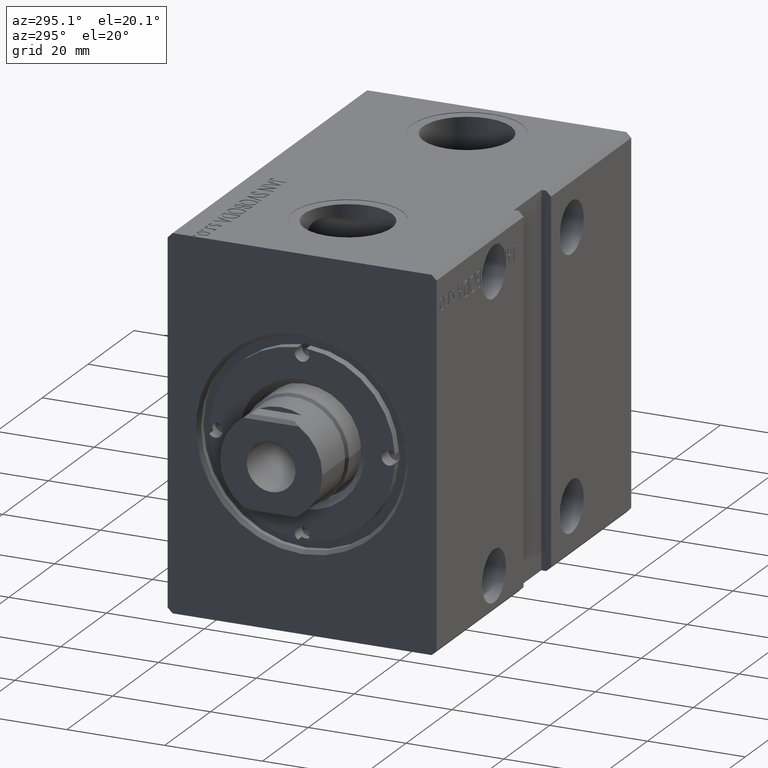
[diagram: clean part render]
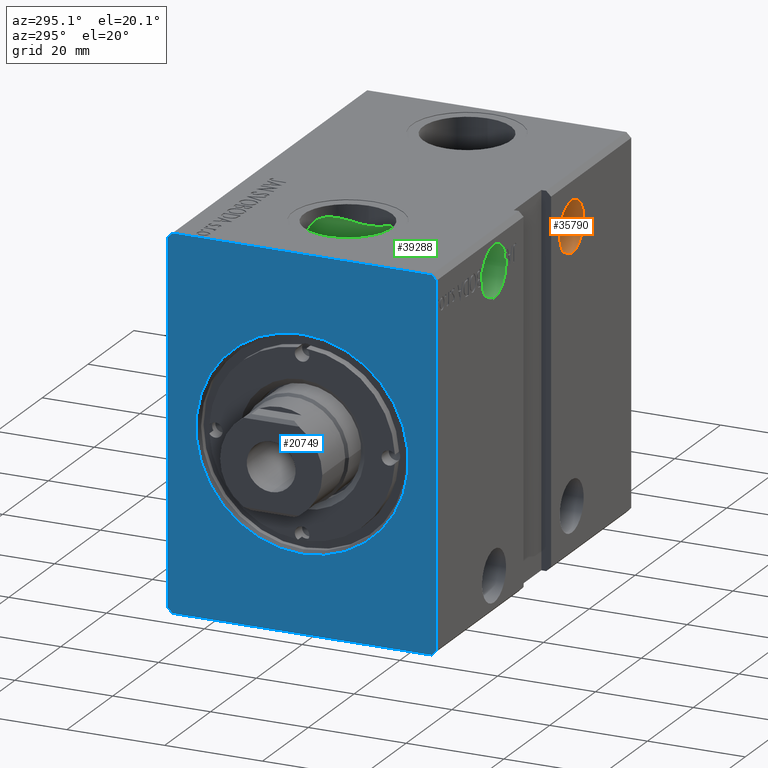
[diagram: same view with three faces highlighted in distinct colors, each labeled with its STEP entity id]
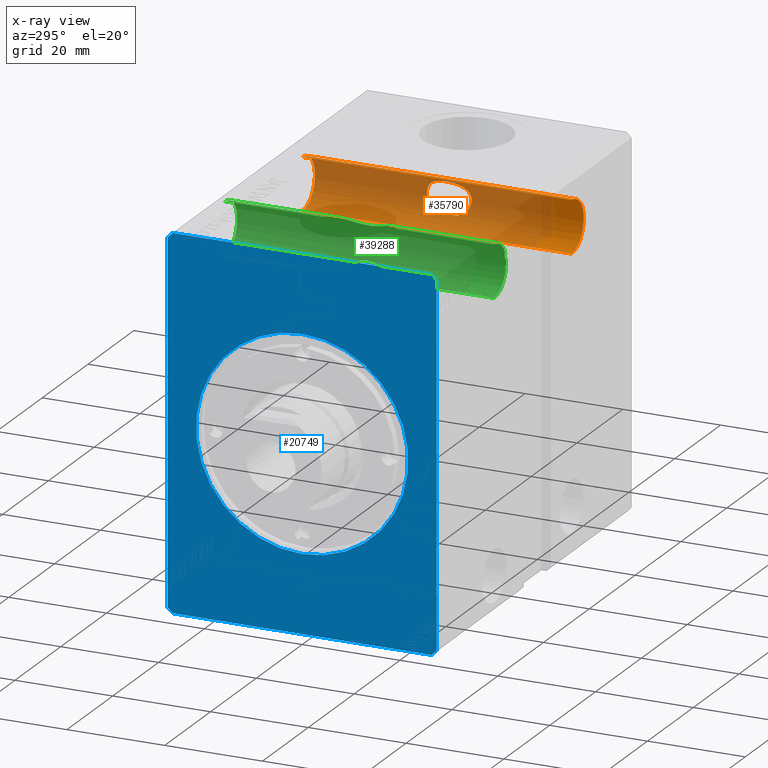
[diagram: x-ray of the same camera — body ghosted, the three highlighted faces saturated]
A machine part, auxiliary view with three faces highlighted in distinct colors.
The next image is the same camera in x-ray (body ghosted, the three faces saturated) — at least one of them is partly hidden behind the body in this view.
Their STEP definitions:

[orange] entity #35790 — the highlighted cylindrical surface (edge-blend (fillet) strip) has radius 5.25 mm, axis along (-0, -1, -0).
#85 = EDGE_CURVE ( 'NONE', #23502, #7759, #32953, .T. ) ;
#107 = CARTESIAN_POINT ( 'NONE',  ( 63.17735735727573854, -1.791229820699735908, 30.68101819592440549 ) ) ;
#509 = CARTESIAN_POINT ( 'NONE',  ( 63.00000000000001421, 1.351885911183617858E-15, 30.90036762718395380 ) ) ;
#550 = EDGE_CURVE ( 'NONE', #23534, #21821, #7840, .T. ) ;
#711 = CARTESIAN_POINT ( 'NONE',  ( 63.87945955640539353, -3.883848780674612922, 25.55504819841954856 ) ) ;
#911 = CARTESIAN_POINT ( 'NONE',  ( 63.46712500178735894, -2.869308037459269212, 24.73955272453624232 ) ) ;
#1451 = DIRECTION ( 'NONE',  ( -0.000000000000000000, -1.000000000000000000, -5.507058653894626469E-17 ) ) ;
#1489 = DIRECTION ( 'NONE',  ( 0.000000000000000000, 0.000000000000000000, 1.000000000000000000 ) ) ;
#1589 = CARTESIAN_POINT ( 'NONE',  ( 64.11577612899114342, 4.341188865543808006, 26.30066548843071672 ) ) ;
#1786 = CARTESIAN_POINT ( 'NONE',  ( 63.46352083236209296, 2.876839699896083680, 24.72117937403267263 ) ) ;
#2118 = EDGE_LOOP ( 'NONE', ( #28451, #32246, #30227, #22377 ) ) ;
#2438 = CARTESIAN_POINT ( 'NONE',  ( 59.00000000000000711, 62.50000000000002842, 22.25000000000000355 ) ) ;
#2961 = CARTESIAN_POINT ( 'NONE',  ( 63.00000000000002842, -0.4568491238301440882, 30.90036762718384367 ) ) ;
#3400 = CARTESIAN_POINT ( 'NONE',  ( 63.00000000000001421, 0.2285937091893411321, 30.90036762718384722 ) ) ;
#3484 = VERTEX_POINT ( 'NONE', #35048 ) ;
#4371 = CARTESIAN_POINT ( 'NONE',  ( 59.00000000000000711, -27.50000000000000355, 22.25000000000000000 ) ) ;
#4712 = FACE_OUTER_BOUND ( 'NONE', #2118, .T. ) ;
#4789 = VERTEX_POINT ( 'NONE', #6966 ) ;
#4950 = CARTESIAN_POINT ( 'NONE',  ( 63.23703906047607859, 62.50000000000002842, 24.40000000000000568 ) ) ;
#5139 = EDGE_CURVE ( 'NONE', #23502, #4789, #26406, .T. ) ;
#5705 = AXIS2_PLACEMENT_3D ( 'NONE', #29454, #1451, #23517 ) ;
#5976 = EDGE_CURVE ( 'NONE', #11431, #23534, #21849, .T. ) ;
#6265 = CARTESIAN_POINT ( 'NONE',  ( 63.45193689625876488, 2.823767583779445811, 30.28477173103815900 ) ) ;
#6507 = ORIENTED_EDGE ( 'NONE', *, *, #85, .F. ) ;
#6966 = CARTESIAN_POINT ( 'NONE',  ( 63.00000000000001421, 1.351885911183617858E-15, 30.90036762718395380 ) ) ;
#7229 = VECTOR ( 'NONE', #10887, 1000.000000000000000 ) ;
#7343 = CARTESIAN_POINT ( 'NONE',  ( 59.00000000000000711, 27.50000000000001066, 32.74999999999999289 ) ) ;
#7759 = VERTEX_POINT ( 'NONE', #30922 ) ;
#7840 = CIRCLE ( 'NONE', #26779, 5.249999999999997335 ) ;
#7848 = B_SPLINE_CURVE_WITH_KNOTS ( 'NONE', 3,
 ( #509, #2961, #12781, #12378, #107, #37117, #25039, #19304, #12988, #40378, #9509, #34432, #37921, #25238, #25449, #24840, #9918, #31771, #40179, #21574, #12171, #34034, #9317, #16460, #711, #38116, #28919, #35450, #911, #32180, #32784, #25651 ),
 .UNSPECIFIED., .F., .F.,
 ( 4, 2, 2, 2, 2, 2, 2, 2, 2, 2, 2, 2, 2, 2, 2, 4 ),
 ( 0.01091576839163245667, 0.01227922980405914827, 0.01296096051027249320, 0.01364269121648583813, 0.01432442192269918479, 0.01500615262891253146, 0.01568788333512587813, 0.01636961404133922479, 0.01705134474755257146, 0.01773307545376591812, 0.01841480615997926479, 0.01909653686619261145, 0.01977826757240595812, 0.02045999827861930478, 0.02114172898483265145, 0.02182345969104599812 ),
 .UNSPECIFIED. ) ;
#7926 = CARTESIAN_POINT ( 'NONE',  ( 64.25398720272728781, 4.582579517354711918, 27.40379452877077782 ) ) ;
#8327 = CARTESIAN_POINT ( 'NONE',  ( 63.74082219121765291, 3.579525040775550337, 25.23815984620106789 ) ) ;
#9317 = CARTESIAN_POINT ( 'NONE',  ( 64.06598455292538574, -4.250693512488517456, 26.10794085817245858 ) ) ;
#9509 = CARTESIAN_POINT ( 'NONE',  ( 63.72406073648301117, -3.540764531740247634, 29.79657558523938832 ) ) ;
#9918 = CARTESIAN_POINT ( 'NONE',  ( 64.22059109385064346, -4.525683233611965228, 28.09918921942067271 ) ) ;
#10190 = CARTESIAN_POINT ( 'NONE',  ( 59.00000000000000711, -27.50000000000000355, 32.74999999999999289 ) ) ;
#10265 = DIRECTION ( 'NONE',  ( -0.000000000000000000, 1.000000000000000000, 4.752667057470704875E-17 ) ) ;
#10579 = EDGE_CURVE ( 'NONE', #3484, #21821, #40048, .T. ) ;
#10669 = CARTESIAN_POINT ( 'NONE',  ( 59.00000000000000711, 27.50000000000001066, 27.49999999999999645 ) ) ;
#10887 = DIRECTION ( 'NONE',  ( -0.000000000000000000, -1.000000000000000000, -5.507058653894626469E-17 ) ) ;
#11056 = CYLINDRICAL_SURFACE ( 'NONE', #5705, 5.249999999999997335 ) ;
#11197 = CARTESIAN_POINT ( 'NONE',  ( 63.87703481848396336, 3.878718120010734793, 25.54914190434713106 ) ) ;
#11394 = CARTESIAN_POINT ( 'NONE',  ( 63.23703906047607859, 2.051954086323031667, 24.40000000000000568 ) ) ;
#11431 = VERTEX_POINT ( 'NONE', #7343 ) ;
#11799 = CARTESIAN_POINT ( 'NONE',  ( 63.86398785359099861, 3.851428884004910014, 29.48313790867668516 ) ) ;
#12054 = DIRECTION ( 'NONE',  ( -0.000000000000000000, -1.000000000000000000, -5.507058653894626469E-17 ) ) ;
#12171 = CARTESIAN_POINT ( 'NONE',  ( 64.19886701045770394, -4.488779779943493864, 26.73728468735682640 ) ) ;
#12196 = CARTESIAN_POINT ( 'NONE',  ( 63.00882615404010068, 0.4582709821037447839, 30.89006355812336579 ) ) ;
#12378 = CARTESIAN_POINT ( 'NONE',  ( 63.13530022793444374, -1.570734599840841073, 30.73491629339045872 ) ) ;
#12781 = CARTESIAN_POINT ( 'NONE',  ( 63.03461103256584153, -0.9067731748314086238, 30.86094918400885589 ) ) ;
#12988 = CARTESIAN_POINT ( 'NONE',  ( 63.51694378951326314, -3.012478249054069579, 30.17945866837451163 ) ) ;
#13128 = EDGE_CURVE ( 'NONE', #4789, #7759, #7848, .T. ) ;
#13289 = ORIENTED_EDGE ( 'NONE', *, *, #13128, .T. ) ;
#13967 = DIRECTION ( 'NONE',  ( -0.000000000000000000, 1.000000000000000000, 5.507058653894625853E-17 ) ) ;
#14063 = CARTESIAN_POINT ( 'NONE',  ( 64.19728802224486230, 4.486044204720249340, 26.72684678981025996 ) ) ;
#14923 = DIRECTION ( 'NONE',  ( -0.000000000000000000, -1.000000000000000000, -5.507058653894626469E-17 ) ) ;
#16126 = CARTESIAN_POINT ( 'NONE',  ( 63.23703906047607859, 2.051954086323031667, 24.40000000000000568 ) ) ;
#16460 = CARTESIAN_POINT ( 'NONE',  ( 63.94619159240092188, -4.019100220847583671, 25.72878096326665442 ) ) ;
#17188 = FACE_BOUND ( 'NONE', #19617, .T. ) ;
#17536 = CARTESIAN_POINT ( 'NONE',  ( 63.67074876004554085, 3.414746636475411545, 25.09850117768273847 ) ) ;
#18538 = CARTESIAN_POINT ( 'NONE',  ( 63.27037381235297886, 2.228410059870144622, 30.56189326917318283 ) ) ;
#18727 = CARTESIAN_POINT ( 'NONE',  ( 63.72597991293614683, 3.545248890265192188, 29.79266824186034057 ) ) ;
#18882 = CARTESIAN_POINT ( 'NONE',  ( 59.00000000000000711, -27.50000000000000355, 27.49999999999999645 ) ) ;
#19304 = CARTESIAN_POINT ( 'NONE',  ( 63.45051295257232482, -2.819465974989197932, 30.28703979294060034 ) ) ;
#19617 = EDGE_LOOP ( 'NONE', ( #39558, #13289, #6507 ) ) ;
#19865 = DIRECTION ( 'NONE',  ( 0.000000000000000000, 0.000000000000000000, -1.000000000000000000 ) ) ;
#20387 = CARTESIAN_POINT ( 'NONE',  ( 64.19169761630224968, 4.476377383390173215, 28.31005979608207213 ) ) ;
#21104 = VECTOR ( 'NONE', #14923, 1000.000000000000000 ) ;
#21407 = CARTESIAN_POINT ( 'NONE',  ( 63.00000000000001421, 1.351885911183617858E-15, 30.90036762718395380 ) ) ;
#21574 = CARTESIAN_POINT ( 'NONE',  ( 64.22727935259305809, -4.537126773887446340, 26.96200664917837386 ) ) ;
#21652 = CARTESIAN_POINT ( 'NONE',  ( 59.00000000000000711, 62.50000000000002842, 32.74999999999999289 ) ) ;
#21797 = CARTESIAN_POINT ( 'NONE',  ( 64.05317680933120528, 4.226772854779554223, 28.93745199135604196 ) ) ;
#21821 = VERTEX_POINT ( 'NONE', #4371 ) ;
#21849 = LINE ( 'NONE', #21652, #28064 ) ;
#22377 = ORIENTED_EDGE ( 'NONE', *, *, #550, .F. ) ;
#23463 = CARTESIAN_POINT ( 'NONE',  ( 64.22170650054620467, 4.527594953482057427, 28.08992065359485935 ) ) ;
#23502 = VERTEX_POINT ( 'NONE', #16126 ) ;
#23517 = DIRECTION ( 'NONE',  ( 0.000000000000000000, 0.000000000000000000, -1.000000000000000000 ) ) ;
#23534 = VERTEX_POINT ( 'NONE', #10190 ) ;
#23854 = CARTESIAN_POINT ( 'NONE',  ( 63.33703540145031496, 2.478992895764745352, 24.53667367826210111 ) ) ;
#24840 = CARTESIAN_POINT ( 'NONE',  ( 64.19035628515983660, -4.474050281105466098, 28.31856394608121619 ) ) ;
#25039 = CARTESIAN_POINT ( 'NONE',  ( 63.32957865942112363, -2.422170707256112276, 30.47143146990363860 ) ) ;
#25238 = CARTESIAN_POINT ( 'NONE',  ( 64.05110842230402568, -4.222882419564368384, 28.94458153567887138 ) ) ;
#25449 = CARTESIAN_POINT ( 'NONE',  ( 64.10481995684352796, -4.321318428066354578, 28.74525439526807702 ) ) ;
#25651 = CARTESIAN_POINT ( 'NONE',  ( 63.23703906047607859, -2.051954086323032556, 24.40000000000000568 ) ) ;
#26406 = B_SPLINE_CURVE_WITH_KNOTS ( 'NONE', 3,
 ( #11394, #23854, #1786, #17536, #8327, #11197, #36126, #36537, #1589, #14063, #26521, #7926, #38994, #23463, #20387, #37338, #21797, #31202, #11799, #18727, #34262, #30806, #6265, #18538, #36940, #37537, #31407, #12196, #3400, #21407 ),
 .UNSPECIFIED., .F., .F.,
 ( 4, 2, 2, 2, 2, 2, 2, 2, 2, 2, 2, 2, 2, 2, 4 ),
 ( 0.000000000000000000, 0.001364471048954041905, 0.002046706573431068821, 0.002728942097908095953, 0.003411177622385122652, 0.004093413146862149785, 0.004775648671339176483, 0.005457884195816204050, 0.006140119720293231616, 0.006822355244770257447, 0.007504590769247285013, 0.008186826293724311712, 0.009551297342678380722, 0.01023353286715541870, 0.01091576839163245667 ),
 .UNSPECIFIED. ) ;
#26521 = CARTESIAN_POINT ( 'NONE',  ( 64.22625531071604144, 4.535376808405338522, 26.95237563391596325 ) ) ;
#26669 = CIRCLE ( 'NONE', #29942, 5.249999999999997335 ) ;
#26779 = AXIS2_PLACEMENT_3D ( 'NONE', #18882, #13967, #1489 ) ;
#28064 = VECTOR ( 'NONE', #12054, 1000.000000000000000 ) ;
#28451 = ORIENTED_EDGE ( 'NONE', *, *, #5976, .F. ) ;
#28919 = CARTESIAN_POINT ( 'NONE',  ( 63.67035448578593559, -3.413707884715786456, 25.09779422387062908 ) ) ;
#29454 = CARTESIAN_POINT ( 'NONE',  ( 59.00000000000000711, 62.50000000000002842, 27.50000000000000000 ) ) ;
#29942 = AXIS2_PLACEMENT_3D ( 'NONE', #10669, #10265, #19865 ) ;
#30227 = ORIENTED_EDGE ( 'NONE', *, *, #10579, .T. ) ;
#30806 = CARTESIAN_POINT ( 'NONE',  ( 63.51747909299573536, 3.014020923103595706, 30.17858620421409910 ) ) ;
#30922 = CARTESIAN_POINT ( 'NONE',  ( 63.23703906047607859, -2.051954086323032556, 24.40000000000000568 ) ) ;
#31202 = CARTESIAN_POINT ( 'NONE',  ( 63.93202125214976661, 3.990654897869445161, 29.30998079054983307 ) ) ;
#31407 = CARTESIAN_POINT ( 'NONE',  ( 63.04322301300181408, 0.9095962986357266633, 30.84896487419088729 ) ) ;
#31771 = CARTESIAN_POINT ( 'NONE',  ( 64.25277315256897737, -4.580555406772859328, 27.64823392834762572 ) ) ;
#32180 = CARTESIAN_POINT ( 'NONE',  ( 63.34418271991562932, -2.473805077758426396, 24.54985569197106088 ) ) ;
#32246 = ORIENTED_EDGE ( 'NONE', *, *, #32842, .T. ) ;
#32784 = CARTESIAN_POINT ( 'NONE',  ( 63.28710176917493158, -2.265749104339758624, 24.46842504910654981 ) ) ;
#32842 = EDGE_CURVE ( 'NONE', #11431, #3484, #26669, .T. ) ;
#32953 = LINE ( 'NONE', #4950, #7229 ) ;
#34034 = CARTESIAN_POINT ( 'NONE',  ( 64.11781110203509115, -4.344872611498939996, 26.30921775103421822 ) ) ;
#34262 = CARTESIAN_POINT ( 'NONE',  ( 63.65493963629189977, 3.376011046892374079, 29.93186726437484069 ) ) ;
#34432 = CARTESIAN_POINT ( 'NONE',  ( 63.86186727537594976, -3.846944231342021681, 29.48827962251944612 ) ) ;
#35048 = CARTESIAN_POINT ( 'NONE',  ( 59.00000000000000711, 27.50000000000001066, 22.25000000000000000 ) ) ;
#35450 = CARTESIAN_POINT ( 'NONE',  ( 63.53317781321850077, -3.057665444757032169, 24.84800027761804486 ) ) ;
#35790 = ADVANCED_FACE ( 'NONE', ( #4712, #17188 ), #11056, .F. ) ;
#36126 = CARTESIAN_POINT ( 'NONE',  ( 63.94363589694300742, 4.013992208277811002, 25.72169925154674885 ) ) ;
#36537 = CARTESIAN_POINT ( 'NONE',  ( 64.06378587647787981, 4.246603512779223877, 26.10001356053864541 ) ) ;
#36940 = CARTESIAN_POINT ( 'NONE',  ( 63.16930914929061203, 1.793779765326797282, 30.69231824680197818 ) ) ;
#37117 = CARTESIAN_POINT ( 'NONE',  ( 63.27443222918446963, -2.216301998529314421, 30.54933113506838538 ) ) ;
#37338 = CARTESIAN_POINT ( 'NONE',  ( 64.10677858376037364, 4.324881069810203371, 28.73722815551284171 ) ) ;
#37537 = CARTESIAN_POINT ( 'NONE',  ( 63.06877624924803172, 1.132664557946608141, 30.81819883014277650 ) ) ;
#37921 = CARTESIAN_POINT ( 'NONE',  ( 63.93004959016771949, -3.986666982114220659, 29.31524740616314872 ) ) ;
#38116 = CARTESIAN_POINT ( 'NONE',  ( 63.74199473161642970, -3.582290808205358612, 25.24047592657458594 ) ) ;
#38994 = CARTESIAN_POINT ( 'NONE',  ( 64.25315994254391683, 4.581204530539428887, 27.63614614734325770 ) ) ;
#39558 = ORIENTED_EDGE ( 'NONE', *, *, #5139, .T. ) ;
#40048 = LINE ( 'NONE', #2438, #21104 ) ;
#40179 = CARTESIAN_POINT ( 'NONE',  ( 64.25419730316731659, -4.582929871456850712, 27.41457766706755450 ) ) ;
#40378 = CARTESIAN_POINT ( 'NONE',  ( 63.65392139617413392, -3.373461102497208319, 29.93378215775002005 ) ) ;

[blue] entity #20749 — the highlighted planar face has unit normal (1, 0, 0).
#3 = LINE ( 'NONE', #8814, #1572 ) ;
#236 = CARTESIAN_POINT ( 'NONE',  ( 0.000000000000000000, -27.50000000000000355, -36.49999999999998579 ) ) ;
#1003 = ORIENTED_EDGE ( 'NONE', *, *, #9672, .F. ) ;
#1182 = VERTEX_POINT ( 'NONE', #36491 ) ;
#1334 = ORIENTED_EDGE ( 'NONE', *, *, #16406, .F. ) ;
#1565 = DIRECTION ( 'NONE',  ( 1.000000000000000000, 0.000000000000000000, 0.000000000000000000 ) ) ;
#1572 = VECTOR ( 'NONE', #14956, 1000.000000000000000 ) ;
#2845 = CARTESIAN_POINT ( 'NONE',  ( 0.000000000000000000, 27.50000000000000355, 36.50000000000000711 ) ) ;
#2952 = FACE_OUTER_BOUND ( 'NONE', #27573, .T. ) ;
#3193 = ORIENTED_EDGE ( 'NONE', *, *, #27109, .F. ) ;
#3805 = VECTOR ( 'NONE', #27008, 1000.000000000000000 ) ;
#5263 = VECTOR ( 'NONE', #31975, 1000.000000000000114 ) ;
#5949 = VERTEX_POINT ( 'NONE', #2845 ) ;
#6274 = VERTEX_POINT ( 'NONE', #17333 ) ;
#6654 = ORIENTED_EDGE ( 'NONE', *, *, #7137, .F. ) ;
#6767 = DIRECTION ( 'NONE',  ( 0.000000000000000000, 4.752667057470705491E-17, -1.000000000000000000 ) ) ;
#7137 = EDGE_CURVE ( 'NONE', #22948, #17811, #26795, .T. ) ;
#7177 = LINE ( 'NONE', #31304, #28335 ) ;
#7530 = EDGE_CURVE ( 'NONE', #25335, #35903, #29106, .T. ) ;
#7770 = AXIS2_PLACEMENT_3D ( 'NONE', #25231, #27709, #15441 ) ;
#8434 = DIRECTION ( 'NONE',  ( 0.000000000000000000, -0.7071067811865474617, 0.7071067811865474617 ) ) ;
#8638 = AXIS2_PLACEMENT_3D ( 'NONE', #20364, #1565, #10975 ) ;
#8814 = CARTESIAN_POINT ( 'NONE',  ( 0.000000000000000000, 27.50000000000000711, -36.49999999999999289 ) ) ;
#9672 = EDGE_CURVE ( 'NONE', #17811, #17972, #14049, .T. ) ;
#9711 = DIRECTION ( 'NONE',  ( 1.000000000000000000, 0.000000000000000000, 0.000000000000000000 ) ) ;
#10199 = CARTESIAN_POINT ( 'NONE',  ( 0.000000000000000000, 27.50000000000000711, -36.49999999999999289 ) ) ;
#10248 = VECTOR ( 'NONE', #28043, 1000.000000000000114 ) ;
#10975 = DIRECTION ( 'NONE',  ( 0.000000000000000000, 0.000000000000000000, -1.000000000000000000 ) ) ;
#12371 = PLANE ( 'NONE',  #7770 ) ;
#12798 = ORIENTED_EDGE ( 'NONE', *, *, #16749, .F. ) ;
#12849 = VERTEX_POINT ( 'NONE', #17558 ) ;
#13001 = AXIS2_PLACEMENT_3D ( 'NONE', #15845, #9711, #22171 ) ;
#13849 = EDGE_CURVE ( 'NONE', #6274, #17760, #26251, .T. ) ;
#14049 = LINE ( 'NONE', #26505, #36202 ) ;
#14546 = CARTESIAN_POINT ( 'NONE',  ( 0.000000000000000000, -26.50000000000000355, -37.49999999999999289 ) ) ;
#14800 = ORIENTED_EDGE ( 'NONE', *, *, #13849, .T. ) ;
#14956 = DIRECTION ( 'NONE',  ( 0.000000000000000000, -4.752667057470704875E-17, 1.000000000000000000 ) ) ;
#15441 = DIRECTION ( 'NONE',  ( 0.000000000000000000, 0.000000000000000000, -1.000000000000000000 ) ) ;
#15845 = CARTESIAN_POINT ( 'NONE',  ( 0.000000000000000000, 0.000000000000000000, 0.000000000000000000 ) ) ;
#16406 = EDGE_CURVE ( 'NONE', #17972, #12849, #7177, .T. ) ;
#16749 = EDGE_CURVE ( 'NONE', #35903, #5949, #3, .T. ) ;
#17307 = CARTESIAN_POINT ( 'NONE',  ( 0.000000000000000000, -27.50000000000000711, 36.50000000000000711 ) ) ;
#17333 = CARTESIAN_POINT ( 'NONE',  ( 0.000000000000000000, 0.000000000000000000, 21.69999999999999574 ) ) ;
#17558 = CARTESIAN_POINT ( 'NONE',  ( 0.000000000000000000, -27.50000000000000355, -36.49999999999998579 ) ) ;
#17760 = VERTEX_POINT ( 'NONE', #21726 ) ;
#17811 = VERTEX_POINT ( 'NONE', #39885 ) ;
#17972 = VERTEX_POINT ( 'NONE', #17307 ) ;
#18004 = LINE ( 'NONE', #14546, #3805 ) ;
#18658 = ORIENTED_EDGE ( 'NONE', *, *, #20868, .T. ) ;
#20364 = CARTESIAN_POINT ( 'NONE',  ( 0.000000000000000000, 0.000000000000000000, 0.000000000000000000 ) ) ;
#20749 = ADVANCED_FACE ( 'NONE', ( #39973, #2952 ), #12371, .F. ) ;
#20868 = EDGE_CURVE ( 'NONE', #17760, #6274, #36487, .T. ) ;
#21726 = CARTESIAN_POINT ( 'NONE',  ( 0.000000000000000000, 2.657483554149755949E-15, -21.69999999999999574 ) ) ;
#22171 = DIRECTION ( 'NONE',  ( 0.000000000000000000, 0.000000000000000000, -1.000000000000000000 ) ) ;
#22948 = VERTEX_POINT ( 'NONE', #31192 ) ;
#23369 = EDGE_CURVE ( 'NONE', #5949, #22948, #36430, .T. ) ;
#25231 = CARTESIAN_POINT ( 'NONE',  ( 0.000000000000000000, 0.000000000000000000, 0.000000000000000000 ) ) ;
#25335 = VERTEX_POINT ( 'NONE', #31336 ) ;
#26251 = CIRCLE ( 'NONE', #8638, 21.69999999999999574 ) ;
#26505 = CARTESIAN_POINT ( 'NONE',  ( 0.000000000000000000, -26.50000000000000711, 37.50000000000000711 ) ) ;
#26795 = LINE ( 'NONE', #39259, #39865 ) ;
#27008 = DIRECTION ( 'NONE',  ( 0.000000000000000000, 1.000000000000000000, 0.000000000000000000 ) ) ;
#27109 = EDGE_CURVE ( 'NONE', #12849, #1182, #37438, .T. ) ;
#27573 = EDGE_LOOP ( 'NONE', ( #28373, #12798, #39418, #27751, #3193, #1334, #1003, #6654 ) ) ;
#27709 = DIRECTION ( 'NONE',  ( 1.000000000000000000, 0.000000000000000000, 0.000000000000000000 ) ) ;
#27751 = ORIENTED_EDGE ( 'NONE', *, *, #38098, .F. ) ;
#28043 = DIRECTION ( 'NONE',  ( 0.000000000000000000, 0.7071067811865451302, -0.7071067811865500152 ) ) ;
#28157 = DIRECTION ( 'NONE',  ( 0.000000000000000000, -1.000000000000000000, 0.000000000000000000 ) ) ;
#28335 = VECTOR ( 'NONE', #6767, 1000.000000000000000 ) ;
#28373 = ORIENTED_EDGE ( 'NONE', *, *, #23369, .F. ) ;
#29106 = LINE ( 'NONE', #31765, #5263 ) ;
#29692 = CARTESIAN_POINT ( 'NONE',  ( 0.000000000000000000, 27.50000000000000355, 36.50000000000000711 ) ) ;
#31192 = CARTESIAN_POINT ( 'NONE',  ( 0.000000000000000000, 26.50000000000000355, 37.50000000000000711 ) ) ;
#31291 = EDGE_LOOP ( 'NONE', ( #14800, #18658 ) ) ;
#31304 = CARTESIAN_POINT ( 'NONE',  ( 0.000000000000000000, -27.50000000000000711, 36.50000000000000711 ) ) ;
#31336 = CARTESIAN_POINT ( 'NONE',  ( 0.000000000000000000, 26.50000000000000711, -37.49999999999999289 ) ) ;
#31765 = CARTESIAN_POINT ( 'NONE',  ( 0.000000000000000000, 26.50000000000000711, -37.49999999999999289 ) ) ;
#31962 = VECTOR ( 'NONE', #8434, 1000.000000000000114 ) ;
#31975 = DIRECTION ( 'NONE',  ( 0.000000000000000000, 0.7071067811865474617, 0.7071067811865474617 ) ) ;
#35903 = VERTEX_POINT ( 'NONE', #10199 ) ;
#36202 = VECTOR ( 'NONE', #38978, 1000.000000000000114 ) ;
#36430 = LINE ( 'NONE', #29692, #31962 ) ;
#36487 = CIRCLE ( 'NONE', #13001, 21.69999999999999574 ) ;
#36491 = CARTESIAN_POINT ( 'NONE',  ( 0.000000000000000000, -26.50000000000000355, -37.49999999999999289 ) ) ;
#37438 = LINE ( 'NONE', #236, #10248 ) ;
#38098 = EDGE_CURVE ( 'NONE', #1182, #25335, #18004, .T. ) ;
#38978 = DIRECTION ( 'NONE',  ( 0.000000000000000000, -0.7071067811865474617, -0.7071067811865474617 ) ) ;
#39259 = CARTESIAN_POINT ( 'NONE',  ( 0.000000000000000000, 26.50000000000000355, 37.50000000000000711 ) ) ;
#39418 = ORIENTED_EDGE ( 'NONE', *, *, #7530, .F. ) ;
#39865 = VECTOR ( 'NONE', #28157, 1000.000000000000000 ) ;
#39885 = CARTESIAN_POINT ( 'NONE',  ( 0.000000000000000000, -26.50000000000000711, 37.50000000000000711 ) ) ;
#39973 = FACE_BOUND ( 'NONE', #31291, .T. ) ;

[green] entity #39288 — the highlighted cylindrical surface (edge-blend (fillet) strip) has radius 5.25 mm, axis along (-0, -1, -0).
#37 = VECTOR ( 'NONE', #1553, 1000.000000000000000 ) ;
#39 = LINE ( 'NONE', #3300, #25965 ) ;
#65 = CARTESIAN_POINT ( 'NONE',  ( 28.81813026369257358, 1.836825413828688580, 33.70052986346509982 ) ) ;
#1082 = ORIENTED_EDGE ( 'NONE', *, *, #19855, .T. ) ;
#1374 = ORIENTED_EDGE ( 'NONE', *, *, #20414, .F. ) ;
#1553 = DIRECTION ( 'NONE',  ( 0.000000000000000000, 1.000000000000000000, 5.507058653894626469E-17 ) ) ;
#1690 = DIRECTION ( 'NONE',  ( -0.000000000000000000, 1.000000000000000000, 5.507058653894625853E-17 ) ) ;
#1810 = EDGE_CURVE ( 'NONE', #18941, #5346, #39, .T. ) ;
#2152 = CARTESIAN_POINT ( 'NONE',  ( 29.00000000000000000, 2.448765741311619827E-15, 33.50575526560491113 ) ) ;
#2336 = CARTESIAN_POINT ( 'NONE',  ( 25.09203633362804808, -7.420994945222091133, 24.74999999999997868 ) ) ;
#2355 = CARTESIAN_POINT ( 'NONE',  ( 25.09203633362804808, -7.420994945222091133, 24.74999999999997868 ) ) ;
#2651 = CARTESIAN_POINT ( 'NONE',  ( 25.09203633362805519, -27.50000000000000355, 24.74999999999997868 ) ) ;
#3142 = VERTEX_POINT ( 'NONE', #14358 ) ;
#3251 = DIRECTION ( 'NONE',  ( -0.000000000000000000, -1.000000000000000000, -5.507058653894626469E-17 ) ) ;
#3279 = DIRECTION ( 'NONE',  ( 0.000000000000000000, 1.000000000000000000, 5.507058653894626469E-17 ) ) ;
#3300 = CARTESIAN_POINT ( 'NONE',  ( 30.28846153846154010, 62.50000000000002842, 30.74810767311343795 ) ) ;
#3881 = AXIS2_PLACEMENT_3D ( 'NONE', #9784, #25716, #21635 ) ;
#4064 = DIRECTION ( 'NONE',  ( -0.000000000000000000, -1.000000000000000000, -5.507058653894626469E-17 ) ) ;
#4282 = CARTESIAN_POINT ( 'NONE',  ( 27.61597516942679320, 4.809012894324030896, 34.60913116232580933 ) ) ;
#4522 = VERTEX_POINT ( 'NONE', #13160 ) ;
#5152 = ORIENTED_EDGE ( 'NONE', *, *, #17881, .T. ) ;
#5192 = ORIENTED_EDGE ( 'NONE', *, *, #18699, .F. ) ;
#5209 = CARTESIAN_POINT ( 'NONE',  ( 28.13259195614233477, -3.871220427964119803, 25.71557989135420286 ) ) ;
#5346 = VERTEX_POINT ( 'NONE', #26682 ) ;
#5645 = EDGE_CURVE ( 'NONE', #27448, #38780, #25894, .T. ) ;
#5780 = DIRECTION ( 'NONE',  ( 0.000000000000000000, 0.000000000000000000, 1.000000000000000000 ) ) ;
#5907 = B_SPLINE_CURVE_WITH_KNOTS ( 'NONE', 3,
 ( #14208, #17888, #8266, #33413, #17472, #20523, #5209, #30351, #39752, #11140, #29944, #24212, #27491, #11949, #24413, #2336 ),
 .UNSPECIFIED., .F., .F.,
 ( 4, 2, 2, 2, 2, 2, 2, 4 ),
 ( 1.438171675672391429E-18, 0.002215372555607655978, 0.003323058833411481582, 0.004430745111215307619, 0.005538431389019131922, 0.006646117666822956224, 0.007753803944626780527, 0.008861490222430604830 ),
 .UNSPECIFIED. ) ;
#6338 = AXIS2_PLACEMENT_3D ( 'NONE', #32733, #13744, #10670 ) ;
#6398 = CIRCLE ( 'NONE', #22058, 5.249999999999997335 ) ;
#6406 = CARTESIAN_POINT ( 'NONE',  ( 27.20739871101655893, 5.402137227018311449, 34.81036374203709016 ) ) ;
#6504 = CARTESIAN_POINT ( 'NONE',  ( 27.80154670682738072, 4.501378752767488223, 25.49887097713087414 ) ) ;
#6526 = CARTESIAN_POINT ( 'NONE',  ( 25.09203633362804808, -7.420994945222091133, 35.24999999999997868 ) ) ;
#6820 = LINE ( 'NONE', #25430, #24237 ) ;
#7108 = CARTESIAN_POINT ( 'NONE',  ( 28.90744086844683736, 1.478371367357671717, 26.38544462637787547 ) ) ;
#7158 = CARTESIAN_POINT ( 'NONE',  ( 26.98594109632271554, 5.685736144636363676, 34.90299169409703239 ) ) ;
#7360 = EDGE_CURVE ( 'NONE', #3142, #39737, #23620, .T. ) ;
#7364 = CARTESIAN_POINT ( 'NONE',  ( 28.29617726831390101, 3.560417901961528742, 34.17750731719846158 ) ) ;
#7797 = VECTOR ( 'NONE', #9527, 1000.000000000000000 ) ;
#8048 = EDGE_CURVE ( 'NONE', #14507, #34848, #19823, .T. ) ;
#8266 = CARTESIAN_POINT ( 'NONE',  ( 28.90713645207089399, -1.479320420641204281, 26.38516940124223709 ) ) ;
#8274 = CARTESIAN_POINT ( 'NONE',  ( 29.00000000000000000, -0.3751634522648794046, 33.50575526560491113 ) ) ;
#8687 = LINE ( 'NONE', #33617, #11522 ) ;
#9054 = CARTESIAN_POINT ( 'NONE',  ( 30.24591836565013026, -27.30000000000000426, 28.99999999999998934 ) ) ;
#9527 = DIRECTION ( 'NONE',  ( -0.000000000000000000, -1.000000000000000000, -5.507058653894626469E-17 ) ) ;
#9706 = CIRCLE ( 'NONE', #27328, 5.249999999999997335 ) ;
#9767 = DIRECTION ( 'NONE',  ( 0.000000000000000000, 0.000000000000000000, -1.000000000000000000 ) ) ;
#9784 = CARTESIAN_POINT ( 'NONE',  ( 25.09203633362805519, -27.50000000000000355, 29.99999999999997868 ) ) ;
#9998 = LINE ( 'NONE', #28197, #31190 ) ;
#10174 = CARTESIAN_POINT ( 'NONE',  ( 26.50826010511298136, 6.226832766654192497, 24.93833448208705761 ) ) ;
#10614 = VERTEX_POINT ( 'NONE', #40445 ) ;
#10670 = DIRECTION ( 'NONE',  ( 0.000000000000000000, 0.000000000000000000, 1.000000000000000000 ) ) ;
#11140 = CARTESIAN_POINT ( 'NONE',  ( 27.21275518690654849, -5.394935761496154392, 25.19202573581271309 ) ) ;
#11191 = CIRCLE ( 'NONE', #16426, 5.249999999999997335 ) ;
#11347 = CARTESIAN_POINT ( 'NONE',  ( 26.24861887141146610, -6.487898207216983515, 35.12877612300681562 ) ) ;
#11522 = VECTOR ( 'NONE', #17479, 1000.000000000000000 ) ;
#11949 = CARTESIAN_POINT ( 'NONE',  ( 25.69690979035508249, -6.977244827295947083, 24.77741998653225153 ) ) ;
#12152 = CARTESIAN_POINT ( 'NONE',  ( 28.29802163043525454, -3.556829698467049994, 34.17627715001510325 ) ) ;
#12363 = DIRECTION ( 'NONE',  ( -0.000000000000000000, -1.000000000000000000, -0.000000000000000000 ) ) ;
#12470 = DIRECTION ( 'NONE',  ( 0.000000000000000000, 0.000000000000000000, -1.000000000000000000 ) ) ;
#12633 = CARTESIAN_POINT ( 'NONE',  ( 28.13248985305452976, 3.871582426429905688, 25.71546369612806160 ) ) ;
#12693 = LINE ( 'NONE', #15366, #32213 ) ;
#12994 = ORIENTED_EDGE ( 'NONE', *, *, #14410, .T. ) ;
#13138 = ORIENTED_EDGE ( 'NONE', *, *, #23019, .T. ) ;
#13160 = CARTESIAN_POINT ( 'NONE',  ( 25.09203633362806229, 7.420994945222086692, 24.74999999999997868 ) ) ;
#13373 = CARTESIAN_POINT ( 'NONE',  ( 25.09203633362805519, 27.50000000000001066, 24.74999999999997868 ) ) ;
#13744 = DIRECTION ( 'NONE',  ( -0.000000000000000000, 1.000000000000000000, 5.507058653894625853E-17 ) ) ;
#13884 = LINE ( 'NONE', #26340, #19471 ) ;
#14004 = ORIENTED_EDGE ( 'NONE', *, *, #30062, .F. ) ;
#14022 = DIRECTION ( 'NONE',  ( 0.000000000000000000, 0.000000000000000000, 1.000000000000000000 ) ) ;
#14208 = CARTESIAN_POINT ( 'NONE',  ( 29.00000000000000000, 3.587151987064342847E-15, 26.49424473439504268 ) ) ;
#14358 = CARTESIAN_POINT ( 'NONE',  ( 30.28846153846154010, -27.50000000000000355, 29.25189232688652297 ) ) ;
#14410 = EDGE_CURVE ( 'NONE', #38780, #10614, #17044, .T. ) ;
#14507 = VERTEX_POINT ( 'NONE', #23690 ) ;
#14630 = CARTESIAN_POINT ( 'NONE',  ( 26.50873434257051642, -6.226347911535001778, 35.06153840808293154 ) ) ;
#15240 = CARTESIAN_POINT ( 'NONE',  ( 25.69255912983133783, -6.980890451850883416, 35.22315996862726450 ) ) ;
#15366 = CARTESIAN_POINT ( 'NONE',  ( 30.01923076923077005, 62.50000000000002842, 31.81252723945477712 ) ) ;
#15460 = VERTEX_POINT ( 'NONE', #24360 ) ;
#15487 = AXIS2_PLACEMENT_3D ( 'NONE', #38165, #35090, #9767 ) ;
#15614 = CARTESIAN_POINT ( 'NONE',  ( 25.39828995337057549, 7.210854044905479654, 35.24999999999998579 ) ) ;
#15786 = DIRECTION ( 'NONE',  ( -0.000000000000000000, -1.000000000000000000, -5.507058653894626469E-17 ) ) ;
#15914 = CARTESIAN_POINT ( 'NONE',  ( 27.61557174186452457, 4.809578937446775448, 25.39067863986758411 ) ) ;
#16316 = CARTESIAN_POINT ( 'NONE',  ( 26.25051141639492158, 6.486121154408040823, 24.87161941258490572 ) ) ;
#16426 = AXIS2_PLACEMENT_3D ( 'NONE', #33570, #1690, #5780 ) ;
#16570 = CARTESIAN_POINT ( 'NONE',  ( 26.50687051437111563, 6.228290665738291487, 35.06205956538869373 ) ) ;
#16579 = ORIENTED_EDGE ( 'NONE', *, *, #39872, .F. ) ;
#17044 = B_SPLINE_CURVE_WITH_KNOTS ( 'NONE', 3,
 ( #20020, #32290, #23100, #18664, #65, #35365, #7364, #35563, #4282, #6406, #7158, #16570, #18866, #37275, #15614, #22690 ),
 .UNSPECIFIED., .F., .F.,
 ( 4, 2, 2, 2, 2, 2, 2, 4 ),
 ( 0.03460413177563790438, 0.03570973411017101112, 0.03681533644470411093, 0.03902654111377031054, 0.04013214344830341729, 0.04123774578283651709, 0.04234334811736962384, 0.04344895045190272365 ),
 .UNSPECIFIED. ) ;
#17099 = CARTESIAN_POINT ( 'NONE',  ( 30.28846153846154010, 62.50000000000002842, 29.25189232688652652 ) ) ;
#17178 = CARTESIAN_POINT ( 'NONE',  ( 30.01923076923077005, -27.30000000000000426, 31.81252723945477001 ) ) ;
#17472 = CARTESIAN_POINT ( 'NONE',  ( 28.53375569791796806, -2.881418590528710855, 26.03211274050205404 ) ) ;
#17479 = DIRECTION ( 'NONE',  ( -0.000000000000000000, -1.000000000000000000, -5.507058653894626469E-17 ) ) ;
#17881 = EDGE_CURVE ( 'NONE', #4522, #27080, #24311, .T. ) ;
#17888 = CARTESIAN_POINT ( 'NONE',  ( 29.00000000000000355, -0.7547348622432300536, 26.49424473439504624 ) ) ;
#18493 = CARTESIAN_POINT ( 'NONE',  ( 28.55241649419669869, -2.896064218536318791, 33.95584415735848438 ) ) ;
#18664 = CARTESIAN_POINT ( 'NONE',  ( 28.88545983803484418, 1.477775345565450982, 33.62999741624012984 ) ) ;
#18699 = EDGE_CURVE ( 'NONE', #15460, #26465, #12693, .T. ) ;
#18866 = CARTESIAN_POINT ( 'NONE',  ( 26.24929060386796209, 6.487242312427180302, 35.12861688073245148 ) ) ;
#18941 = VERTEX_POINT ( 'NONE', #27172 ) ;
#19284 = DIRECTION ( 'NONE',  ( -0.000000000000000000, -1.000000000000000000, -5.507058653894626469E-17 ) ) ;
#19471 = VECTOR ( 'NONE', #4064, 1000.000000000000000 ) ;
#19823 = CIRCLE ( 'NONE', #30916, 5.249999999999997335 ) ;
#19855 = EDGE_CURVE ( 'NONE', #18941, #26465, #9706, .T. ) ;
#20003 = ORIENTED_EDGE ( 'NONE', *, *, #24382, .F. ) ;
#20020 = CARTESIAN_POINT ( 'NONE',  ( 29.00000000000000000, 2.448765741311619827E-15, 33.50575526560491113 ) ) ;
#20414 = EDGE_CURVE ( 'NONE', #35610, #39941, #13884, .T. ) ;
#20523 = CARTESIAN_POINT ( 'NONE',  ( 28.27858796160337107, -3.548597013974325698, 25.82442217066163437 ) ) ;
#20739 = CARTESIAN_POINT ( 'NONE',  ( 25.09203633362804808, -7.420994945222091133, 35.24999999999997868 ) ) ;
#21554 = CARTESIAN_POINT ( 'NONE',  ( 27.80044988867588174, -4.503335614300094214, 34.50180843151989762 ) ) ;
#21583 = ORIENTED_EDGE ( 'NONE', *, *, #5645, .T. ) ;
#21635 = DIRECTION ( 'NONE',  ( 0.000000000000000000, 0.000000000000000000, 1.000000000000000000 ) ) ;
#21745 = ORIENTED_EDGE ( 'NONE', *, *, #7360, .F. ) ;
#22058 = AXIS2_PLACEMENT_3D ( 'NONE', #40360, #12363, #25223 ) ;
#22068 = DIRECTION ( 'NONE',  ( -0.000000000000000000, 1.000000000000000000, 4.752667057470704875E-17 ) ) ;
#22104 = CARTESIAN_POINT ( 'NONE',  ( 29.00000000000000000, 3.587151987064342847E-15, 26.49424473439504268 ) ) ;
#22393 = CARTESIAN_POINT ( 'NONE',  ( 25.09203633362805519, 62.50000000000002842, 24.74999999999998224 ) ) ;
#22634 = EDGE_CURVE ( 'NONE', #39941, #27364, #39137, .T. ) ;
#22636 = CARTESIAN_POINT ( 'NONE',  ( 28.27869767015492286, 3.548313514257610102, 25.82451090514978631 ) ) ;
#22690 = CARTESIAN_POINT ( 'NONE',  ( 25.09203633362806229, 7.420994945222085803, 35.24999999999997868 ) ) ;
#23019 = EDGE_CURVE ( 'NONE', #34848, #4522, #37527, .T. ) ;
#23100 = CARTESIAN_POINT ( 'NONE',  ( 28.97639889706040250, 0.7479835199682542957, 33.53251618559648506 ) ) ;
#23133 = EDGE_CURVE ( 'NONE', #27080, #36667, #5907, .T. ) ;
#23620 = LINE ( 'NONE', #17099, #37 ) ;
#23690 = CARTESIAN_POINT ( 'NONE',  ( 25.09203633362805519, 27.50000000000001066, 35.24999999999997868 ) ) ;
#23897 = EDGE_LOOP ( 'NONE', ( #14004, #32704, #13138, #5152, #30885, #36957, #28152, #1374, #28332, #21745, #16579, #26309, #1082, #5192, #20003, #30850, #21583, #12994 ) ) ;
#24014 = CARTESIAN_POINT ( 'NONE',  ( 28.97665713912697072, -0.7447784191796217312, 33.53222785005503681 ) ) ;
#24163 = EDGE_CURVE ( 'NONE', #27448, #35707, #6820, .T. ) ;
#24212 = CARTESIAN_POINT ( 'NONE',  ( 26.50772424525515092, -6.227478193131618767, 24.93813414828927222 ) ) ;
#24237 = VECTOR ( 'NONE', #19284, 1000.000000000000000 ) ;
#24311 = B_SPLINE_CURVE_WITH_KNOTS ( 'NONE', 3,
 ( #30482, #32237, #37565, #16316, #10174, #28571, #25708, #15914, #6504, #12633, #22636, #35101, #37779, #7108, #32039, #38174 ),
 .UNSPECIFIED., .F., .F.,
 ( 4, 2, 2, 2, 2, 2, 2, 4 ),
 ( 0.06033460887128355710, 0.06143913948644485340, 0.06254367010160614970, 0.06364820071676745294, 0.06475273133192874231, 0.06585726194709004555, 0.06696179256225134879, 0.06917085379257394140 ),
 .UNSPECIFIED. ) ;
#24360 = CARTESIAN_POINT ( 'NONE',  ( 30.01923076923077005, -27.50000000000000355, 31.81252723945477001 ) ) ;
#24382 = EDGE_CURVE ( 'NONE', #35707, #15460, #11191, .T. ) ;
#24413 = CARTESIAN_POINT ( 'NONE',  ( 25.39913943000259167, -7.210271162703460135, 24.74999999999997868 ) ) ;
#24584 = CARTESIAN_POINT ( 'NONE',  ( 30.28846153846154010, -27.30000000000000426, 29.25189232688651941 ) ) ;
#25223 = DIRECTION ( 'NONE',  ( -4.295505750037810177E-14, 0.000000000000000000, 1.000000000000000000 ) ) ;
#25430 = CARTESIAN_POINT ( 'NONE',  ( 25.09203633362805519, 62.50000000000002842, 35.24999999999998579 ) ) ;
#25546 = CARTESIAN_POINT ( 'NONE',  ( 25.09203633362805519, 27.50000000000001066, 29.99999999999997868 ) ) ;
#25708 = CARTESIAN_POINT ( 'NONE',  ( 27.20811824714590443, 5.401112278612569817, 25.18998215254051587 ) ) ;
#25716 = DIRECTION ( 'NONE',  ( -0.000000000000000000, 1.000000000000000000, 5.507058653894625853E-17 ) ) ;
#25894 = B_SPLINE_CURVE_WITH_KNOTS ( 'NONE', 3,
 ( #20739, #33819, #15240, #11347, #14630, #30760, #40159, #33619, #21554, #12152, #18493, #36272, #30957, #24014, #8274, #2152 ),
 .UNSPECIFIED., .F., .F.,
 ( 4, 2, 2, 2, 2, 2, 2, 4 ),
 ( 0.02576235852698001427, 0.02686758018306225140, 0.02797280183914449200, 0.02907802349522672913, 0.03018324515130896973, 0.03239368846347343706, 0.03349891011955567072, 0.03460413177563790438 ),
 .UNSPECIFIED. ) ;
#25965 = VECTOR ( 'NONE', #15786, 1000.000000000000000 ) ;
#26182 = CARTESIAN_POINT ( 'NONE',  ( 25.09203633362805519, -27.50000000000000355, 35.24999999999997868 ) ) ;
#26309 = ORIENTED_EDGE ( 'NONE', *, *, #1810, .F. ) ;
#26340 = CARTESIAN_POINT ( 'NONE',  ( 30.24591836565012670, 62.50000000000002842, 28.99999999999998934 ) ) ;
#26465 = VERTEX_POINT ( 'NONE', #17178 ) ;
#26682 = CARTESIAN_POINT ( 'NONE',  ( 30.28846153846154010, -27.50000000000000355, 30.74810767311343440 ) ) ;
#27080 = VERTEX_POINT ( 'NONE', #22104 ) ;
#27093 = CARTESIAN_POINT ( 'NONE',  ( 25.09203633362805519, -27.30000000000000426, 29.99999999999997868 ) ) ;
#27172 = CARTESIAN_POINT ( 'NONE',  ( 30.28846153846154010, -27.30000000000000426, 30.74810767311343795 ) ) ;
#27328 = AXIS2_PLACEMENT_3D ( 'NONE', #27093, #29550, #14022 ) ;
#27364 = VERTEX_POINT ( 'NONE', #2651 ) ;
#27448 = VERTEX_POINT ( 'NONE', #6526 ) ;
#27491 = CARTESIAN_POINT ( 'NONE',  ( 26.25006452619709663, -6.486402697785905502, 24.87162943997403985 ) ) ;
#28152 = ORIENTED_EDGE ( 'NONE', *, *, #22634, .F. ) ;
#28197 = CARTESIAN_POINT ( 'NONE',  ( 25.09203633362805519, 62.50000000000002842, 35.24999999999998579 ) ) ;
#28332 = ORIENTED_EDGE ( 'NONE', *, *, #30837, .T. ) ;
#28364 = FACE_OUTER_BOUND ( 'NONE', #23897, .T. ) ;
#28571 = CARTESIAN_POINT ( 'NONE',  ( 26.98708261470107672, 5.684326911343642763, 25.09745503042153558 ) ) ;
#29550 = DIRECTION ( 'NONE',  ( -0.000000000000000000, -1.000000000000000000, -0.000000000000000000 ) ) ;
#29926 = CIRCLE ( 'NONE', #6338, 5.249999999999997335 ) ;
#29944 = CARTESIAN_POINT ( 'NONE',  ( 26.98845012761672635, -5.682739155726322267, 25.09793177466777436 ) ) ;
#30062 = EDGE_CURVE ( 'NONE', #14507, #10614, #9998, .T. ) ;
#30351 = CARTESIAN_POINT ( 'NONE',  ( 27.80328347173058035, -4.498240387842135313, 25.49995854273512919 ) ) ;
#30482 = CARTESIAN_POINT ( 'NONE',  ( 25.09203633362806229, 7.420994945222086692, 24.74999999999997868 ) ) ;
#30760 = CARTESIAN_POINT ( 'NONE',  ( 26.98775188104276523, -5.683516051408362024, 34.90229200153667932 ) ) ;
#30837 = EDGE_CURVE ( 'NONE', #35610, #39737, #6398, .T. ) ;
#30850 = ORIENTED_EDGE ( 'NONE', *, *, #24163, .F. ) ;
#30885 = ORIENTED_EDGE ( 'NONE', *, *, #23133, .T. ) ;
#30916 = AXIS2_PLACEMENT_3D ( 'NONE', #25546, #22068, #12470 ) ;
#30957 = CARTESIAN_POINT ( 'NONE',  ( 28.88604462900767089, -1.474204578204435734, 33.62938196416556025 ) ) ;
#31190 = VECTOR ( 'NONE', #3251, 1000.000000000000000 ) ;
#32039 = CARTESIAN_POINT ( 'NONE',  ( 29.00000000000000355, 0.7525847149880788844, 26.49424473439504268 ) ) ;
#32213 = VECTOR ( 'NONE', #3279, 1000.000000000000000 ) ;
#32237 = CARTESIAN_POINT ( 'NONE',  ( 25.39935733355073566, 7.210121644641183103, 24.74999999999998224 ) ) ;
#32290 = CARTESIAN_POINT ( 'NONE',  ( 29.00000000000000355, 0.3752926721738933935, 33.50575526560491113 ) ) ;
#32704 = ORIENTED_EDGE ( 'NONE', *, *, #8048, .T. ) ;
#32733 = CARTESIAN_POINT ( 'NONE',  ( 25.09203633362805519, -27.50000000000000355, 29.99999999999997868 ) ) ;
#33413 = CARTESIAN_POINT ( 'NONE',  ( 28.64344796629017154, -2.534200944029155966, 26.13155745703043920 ) ) ;
#33570 = CARTESIAN_POINT ( 'NONE',  ( 25.09203633362805519, -27.50000000000000355, 29.99999999999997868 ) ) ;
#33617 = CARTESIAN_POINT ( 'NONE',  ( 25.09203633362805519, 62.50000000000002842, 24.74999999999998224 ) ) ;
#33619 = CARTESIAN_POINT ( 'NONE',  ( 27.61425571795738776, -4.811558733873751770, 34.60999959154606387 ) ) ;
#33819 = CARTESIAN_POINT ( 'NONE',  ( 25.39985986452861866, -7.209776824840458787, 35.24999999999997868 ) ) ;
#33976 = EDGE_CURVE ( 'NONE', #36667, #27364, #8687, .T. ) ;
#34848 = VERTEX_POINT ( 'NONE', #13373 ) ;
#35090 = DIRECTION ( 'NONE',  ( -0.000000000000000000, -1.000000000000000000, -5.507058653894626469E-17 ) ) ;
#35101 = CARTESIAN_POINT ( 'NONE',  ( 28.53366756112175295, 2.881645687025073954, 26.03204156412034820 ) ) ;
#35365 = CARTESIAN_POINT ( 'NONE',  ( 28.55143353920023586, 2.899375832483972015, 33.95674865998868341 ) ) ;
#35563 = CARTESIAN_POINT ( 'NONE',  ( 27.80104324340688038, 4.502166982739526979, 34.50140846751485668 ) ) ;
#35610 = VERTEX_POINT ( 'NONE', #9054 ) ;
#35638 = CARTESIAN_POINT ( 'NONE',  ( 29.00000000000000000, 2.448765741311619827E-15, 33.50575526560491113 ) ) ;
#35707 = VERTEX_POINT ( 'NONE', #26182 ) ;
#36272 = CARTESIAN_POINT ( 'NONE',  ( 28.81830316114043811, -1.835833140632391336, 33.70034376692515821 ) ) ;
#36667 = VERTEX_POINT ( 'NONE', #2355 ) ;
#36957 = ORIENTED_EDGE ( 'NONE', *, *, #33976, .T. ) ;
#37275 = CARTESIAN_POINT ( 'NONE',  ( 25.69352248287891172, 6.980096532906297391, 35.22304154373502882 ) ) ;
#37527 = LINE ( 'NONE', #22393, #7797 ) ;
#37565 = CARTESIAN_POINT ( 'NONE',  ( 25.69334361712194692, 6.980293622299830858, 24.77689924301810365 ) ) ;
#37766 = CYLINDRICAL_SURFACE ( 'NONE', #15487, 5.249999999999997335 ) ;
#37779 = CARTESIAN_POINT ( 'NONE',  ( 28.64300191448425181, 2.535850762051376606, 26.13113724437028296 ) ) ;
#38165 = CARTESIAN_POINT ( 'NONE',  ( 25.09203633362805519, 62.50000000000002842, 29.99999999999998224 ) ) ;
#38174 = CARTESIAN_POINT ( 'NONE',  ( 29.00000000000000000, 3.587151987064342847E-15, 26.49424473439504268 ) ) ;
#38780 = VERTEX_POINT ( 'NONE', #35638 ) ;
#39137 = CIRCLE ( 'NONE', #3881, 5.249999999999997335 ) ;
#39288 = ADVANCED_FACE ( 'NONE', ( #28364 ), #37766, .F. ) ;
#39737 = VERTEX_POINT ( 'NONE', #24584 ) ;
#39752 = CARTESIAN_POINT ( 'NONE',  ( 27.61997872250114483, -4.802613197577657367, 25.39309515419770236 ) ) ;
#39872 = EDGE_CURVE ( 'NONE', #5346, #3142, #29926, .T. ) ;
#39941 = VERTEX_POINT ( 'NONE', #40271 ) ;
#40159 = CARTESIAN_POINT ( 'NONE',  ( 27.20831197909022947, -5.400761612964192437, 34.80989233238801717 ) ) ;
#40271 = CARTESIAN_POINT ( 'NONE',  ( 30.24591836565013026, -27.50000000000000355, 28.99999999999998934 ) ) ;
#40360 = CARTESIAN_POINT ( 'NONE',  ( 25.09203633362805519, -27.30000000000000426, 29.99999999999997868 ) ) ;
#40445 = CARTESIAN_POINT ( 'NONE',  ( 25.09203633362806229, 7.420994945222085803, 35.24999999999997868 ) ) ;